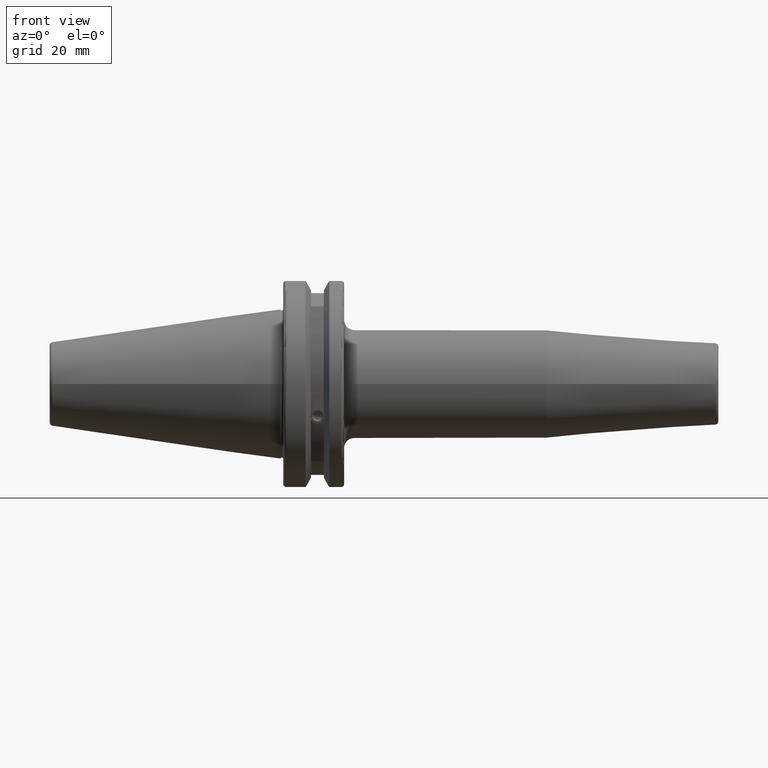
[diagram: clean part render]
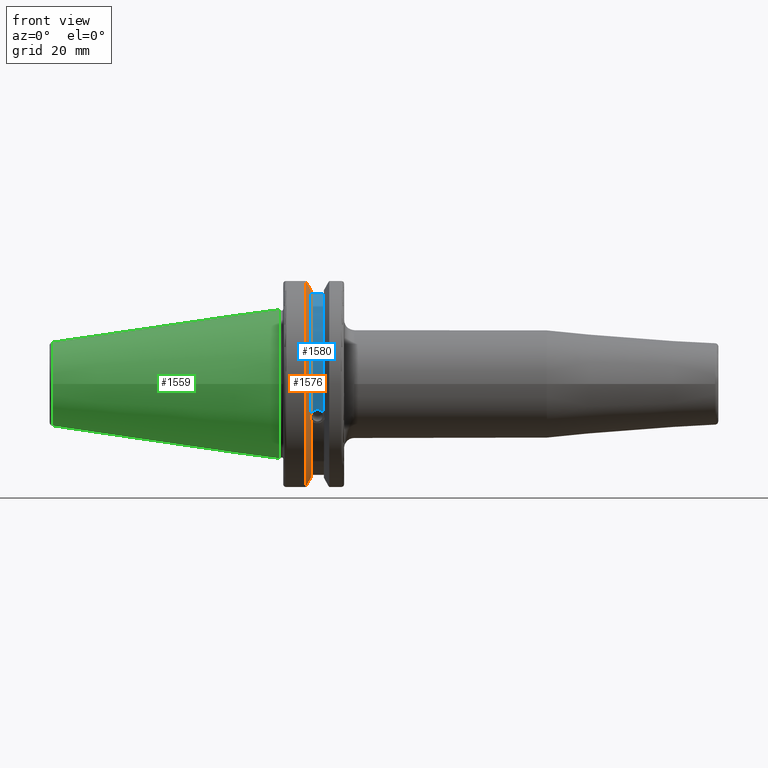
[diagram: same view with three faces highlighted in distinct colors, each labeled with its STEP entity id]
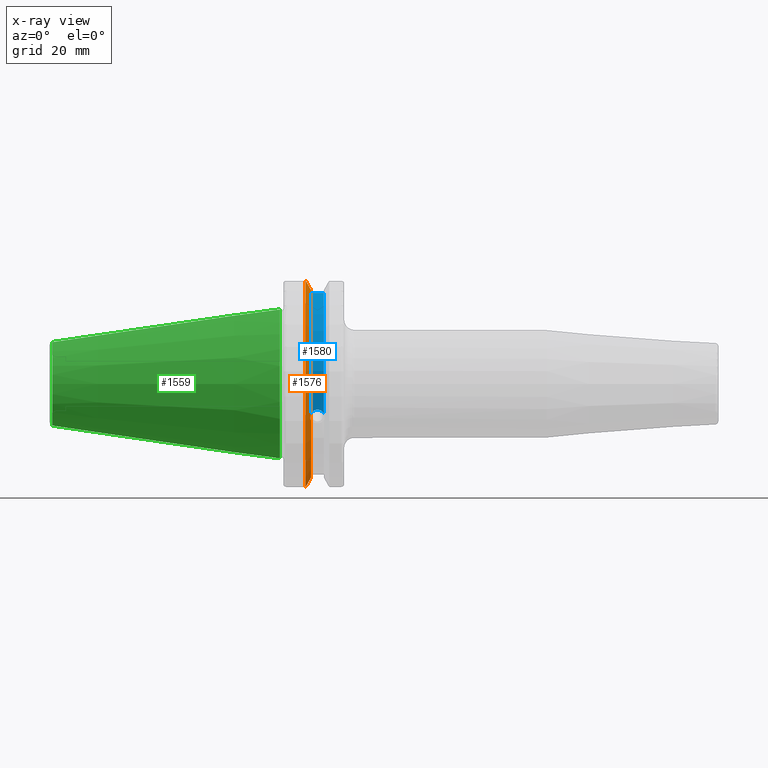
[diagram: x-ray of the same camera — body ghosted, the three highlighted faces saturated]
A machine part, front view with three faces highlighted in distinct colors.
The next image is the same camera in x-ray (body ghosted, the three faces saturated) — at least one of them is partly hidden behind the body in this view.
Their STEP definitions:

[orange] entity #1576 — the highlighted conical surface has half-angle 60 deg.
#24=(
BOUNDED_CURVE()
B_SPLINE_CURVE(2,(#2894,#2895,#2896),.UNSPECIFIED.,.F.,.F.)
B_SPLINE_CURVE_WITH_KNOTS((3,3),(0.,0.276549142797088),.UNSPECIFIED.)
CURVE()
GEOMETRIC_REPRESENTATION_ITEM()
RATIONAL_B_SPLINE_CURVE((1.,1.00095203903867,1.00031614444995))
REPRESENTATION_ITEM('')
);
#25=(
BOUNDED_CURVE()
B_SPLINE_CURVE(2,(#2906,#2907,#2908),.UNSPECIFIED.,.F.,.F.)
B_SPLINE_CURVE_WITH_KNOTS((3,3),(0.0550586467393311,0.331607789535851),
 .UNSPECIFIED.)
CURVE()
GEOMETRIC_REPRESENTATION_ITEM()
RATIONAL_B_SPLINE_CURVE((1.00031614445049,1.00095203904028,1.))
REPRESENTATION_ITEM('')
);
#26=(
BOUNDED_CURVE()
B_SPLINE_CURVE(2,(#2941,#2942,#2943),.UNSPECIFIED.,.F.,.F.)
B_SPLINE_CURVE_WITH_KNOTS((3,3),(0.,0.0639048713675838),.UNSPECIFIED.)
CURVE()
GEOMETRIC_REPRESENTATION_ITEM()
RATIONAL_B_SPLINE_CURVE((1.,1.00028444218292,1.00047644010588))
REPRESENTATION_ITEM('')
);
#27=(
BOUNDED_CURVE()
B_SPLINE_CURVE(2,(#2949,#2950,#2951),.UNSPECIFIED.,.F.,.F.)
B_SPLINE_CURVE_WITH_KNOTS((3,3),(0.329353533631213,0.393258405001024),
 .UNSPECIFIED.)
CURVE()
GEOMETRIC_REPRESENTATION_ITEM()
RATIONAL_B_SPLINE_CURVE((1.00047644010576,1.00028444218285,1.))
REPRESENTATION_ITEM('')
);
#38=B_SPLINE_CURVE_WITH_KNOTS('',3,(#2496,#2497,#2498,#2499,#2500,#2501,
#2502,#2503,#2504,#2505,#2506,#2507,#2508,#2509),.UNSPECIFIED.,.F.,.F.,
(4,2,2,2,2,2,4),(0.451995700189025,0.464547828547662,0.504528771685168,
0.544509714822673,0.584490657960178,0.624471601097683,0.637023729456319),
 .UNSPECIFIED.);
#251=FACE_OUTER_BOUND('',#355,.T.);
#355=EDGE_LOOP('',(#1435,#1436,#1437,#1438,#1439,#1440,#1441,#1442));
#588=CIRCLE('',#1685,28.9593772964944);
#609=CIRCLE('',#1739,31.75);
#621=CIRCLE('',#1774,28.9593772964944);
#679=VERTEX_POINT('',#2493);
#680=VERTEX_POINT('',#2495);
#697=VERTEX_POINT('',#2588);
#758=VERTEX_POINT('',#2891);
#759=VERTEX_POINT('',#2893);
#762=VERTEX_POINT('',#2905);
#766=VERTEX_POINT('',#2939);
#767=VERTEX_POINT('',#2945);
#851=EDGE_CURVE('',#680,#679,#38,.T.);
#875=EDGE_CURVE('',#680,#697,#588,.T.);
#958=EDGE_CURVE('',#759,#758,#24,.T.);
#964=EDGE_CURVE('',#762,#697,#25,.T.);
#972=EDGE_CURVE('',#766,#758,#26,.T.);
#974=EDGE_CURVE('',#766,#767,#609,.T.);
#975=EDGE_CURVE('',#762,#767,#27,.T.);
#1008=EDGE_CURVE('',#759,#679,#621,.T.);
#1435=ORIENTED_EDGE('',*,*,#851,.T.);
#1436=ORIENTED_EDGE('',*,*,#1008,.F.);
#1437=ORIENTED_EDGE('',*,*,#958,.T.);
#1438=ORIENTED_EDGE('',*,*,#972,.F.);
#1439=ORIENTED_EDGE('',*,*,#974,.T.);
#1440=ORIENTED_EDGE('',*,*,#975,.F.);
#1441=ORIENTED_EDGE('',*,*,#964,.T.);
#1442=ORIENTED_EDGE('',*,*,#875,.F.);
#1497=CONICAL_SURFACE('',#1773,30.3546886482472,1.0471975511966);
#1576=ADVANCED_FACE('',(#251),#1497,.T.);
#1685=AXIS2_PLACEMENT_3D('',#2589,#1975,#1976);
#1739=AXIS2_PLACEMENT_3D('',#2947,#2125,#2126);
#1773=AXIS2_PLACEMENT_3D('',#3044,#2208,#2209);
#1774=AXIS2_PLACEMENT_3D('',#3045,#2210,#2211);
#1975=DIRECTION('center_axis',(1.,0.,0.));
#1976=DIRECTION('ref_axis',(0.,0.,-1.));
#2125=DIRECTION('center_axis',(1.,0.,0.));
#2126=DIRECTION('ref_axis',(0.,0.,-1.));
#2208=DIRECTION('center_axis',(-1.,0.,0.));
#2209=DIRECTION('ref_axis',(0.,-1.,-1.22464679914735E-16));
#2210=DIRECTION('center_axis',(1.,0.,0.));
#2211=DIRECTION('ref_axis',(0.,0.,-1.));
#2493=CARTESIAN_POINT('',(9.2191,-27.4956274489925,-9.09043478536247));
#2495=CARTESIAN_POINT('',(9.21909999999999,-26.9060914640648,-10.7101715919071));
#2496=CARTESIAN_POINT('Ctrl Pts',(9.21909999999999,-26.9060914640648,-10.7101715919071));
#2497=CARTESIAN_POINT('Ctrl Pts',(9.20497959280038,-26.9406927482839,-10.6893765730703));
#2498=CARTESIAN_POINT('Ctrl Pts',(9.19150701821433,-26.9744191989197,-10.6676007180673));
#2499=CARTESIAN_POINT('Ctrl Pts',(9.13811855884095,-27.1113422433188,-10.5723885976054));
#2500=CARTESIAN_POINT('Ctrl Pts',(9.09998029158246,-27.2180531796526,-10.4801333026531));
#2501=CARTESIAN_POINT('Ctrl Pts',(9.04778935539424,-27.3968610665578,-10.2639559818059));
#2502=CARTESIAN_POINT('Ctrl Pts',(9.0341,-27.4684373304961,-10.139516340139));
#2503=CARTESIAN_POINT('Ctrl Pts',(9.0341,-27.559599249844,-9.8890510252165));
#2504=CARTESIAN_POINT('Ctrl Pts',(9.04778935539424,-27.5847569104121,-9.74771639360671));
#2505=CARTESIAN_POINT('Ctrl Pts',(9.09998029158246,-27.5867382255984,-9.46717946402648));
#2506=CARTESIAN_POINT('Ctrl Pts',(9.13811855884095,-27.5642934663232,-9.32791534028655));
#2507=CARTESIAN_POINT('Ctrl Pts',(9.19150701821433,-27.5206055003512,-9.16696618806878));
#2508=CARTESIAN_POINT('Ctrl Pts',(9.20497959280038,-27.5087667900418,-9.12860597076219));
#2509=CARTESIAN_POINT('Ctrl Pts',(9.21909999999999,-27.4956274489925,-9.09043478536247));
#2588=CARTESIAN_POINT('',(9.2191,-8.19,-27.7771386827498));
#2589=CARTESIAN_POINT('Origin',(9.2191,0.,0.));
#2891=CARTESIAN_POINT('',(7.88668530351255,-8.19,30.1755016258903));
#2893=CARTESIAN_POINT('',(9.2191,-8.19,27.7771386827498));
#2894=CARTESIAN_POINT('Ctrl Pts',(9.2191,-8.19,27.7771386827498));
#2895=CARTESIAN_POINT('Ctrl Pts',(8.58046356153227,-8.19,28.9303689539555));
#2896=CARTESIAN_POINT('Ctrl Pts',(7.88668530351255,-8.19,30.1755016258903));
#2905=CARTESIAN_POINT('',(7.88668530351256,-8.19,-30.1755016258903));
#2906=CARTESIAN_POINT('Ctrl Pts',(7.88668530351256,-8.19,-30.1755016258903));
#2907=CARTESIAN_POINT('Ctrl Pts',(8.5804635615239,-8.19,-28.9303689539705));
#2908=CARTESIAN_POINT('Ctrl Pts',(9.2191,-8.19,-27.7771386827498));
#2939=CARTESIAN_POINT('',(7.60793323092436,-8.67204822802685,30.5427254764662));
#2941=CARTESIAN_POINT('Ctrl Pts',(7.60793323092436,-8.67204822802685,30.5427254764662));
#2942=CARTESIAN_POINT('Ctrl Pts',(7.74899148121628,-8.42917748262643,30.3577067892629));
#2943=CARTESIAN_POINT('Ctrl Pts',(7.88668530351255,-8.19,30.1755016258903));
#2945=CARTESIAN_POINT('',(7.60793323092436,-8.67204822802685,-30.5427254764662));
#2947=CARTESIAN_POINT('Origin',(7.60793323092436,0.,0.));
#2949=CARTESIAN_POINT('Ctrl Pts',(7.88668530351256,-8.19,-30.1755016258903));
#2950=CARTESIAN_POINT('Ctrl Pts',(7.7489914812116,-8.42917748263465,-30.3577067892692));
#2951=CARTESIAN_POINT('Ctrl Pts',(7.60793323092436,-8.67204822802685,-30.5427254764662));
#3044=CARTESIAN_POINT('Origin',(8.41351661546217,0.,0.));
#3045=CARTESIAN_POINT('Origin',(9.2191,0.,0.));

[blue] entity #1580 — the highlighted cylindrical surface (partial cylindrical patch) has radius 28.15 mm, axis along (1, 0, 0).
#37=B_SPLINE_CURVE_WITH_KNOTS('',3,(#2479,#2480,#2481,#2482,#2483,#2484,
#2485,#2486,#2487,#2488,#2489,#2490,#2491,#2492),.UNSPECIFIED.,.F.,.F.,
(4,2,2,2,2,2,4),(0.401639126382403,0.474814416953736,0.553950208498303,
0.63308600004287,0.712221791587437,0.791357583132004,0.864532873703337),
 .UNSPECIFIED.);
#173=CYLINDRICAL_SURFACE('',#1781,28.15);
#255=FACE_OUTER_BOUND('',#359,.T.);
#359=EDGE_LOOP('',(#1455,#1456,#1457,#1458));
#436=LINE('',#2900,#529);
#529=VECTOR('',#2107,10.);
#623=CIRCLE('',#1778,28.15);
#625=CIRCLE('',#1782,28.15);
#677=VERTEX_POINT('',#2476);
#678=VERTEX_POINT('',#2478);
#760=VERTEX_POINT('',#2897);
#761=VERTEX_POINT('',#2899);
#849=EDGE_CURVE('',#678,#677,#37,.T.);
#960=EDGE_CURVE('',#761,#760,#436,.T.);
#1010=EDGE_CURVE('',#760,#678,#623,.T.);
#1012=EDGE_CURVE('',#761,#677,#625,.T.);
#1455=ORIENTED_EDGE('',*,*,#849,.T.);
#1456=ORIENTED_EDGE('',*,*,#1012,.F.);
#1457=ORIENTED_EDGE('',*,*,#960,.T.);
#1458=ORIENTED_EDGE('',*,*,#1010,.T.);
#1580=ADVANCED_FACE('',(#255),#173,.T.);
#1778=AXIS2_PLACEMENT_3D('',#3049,#2218,#2219);
#1781=AXIS2_PLACEMENT_3D('',#3052,#2224,#2225);
#1782=AXIS2_PLACEMENT_3D('',#3053,#2226,#2227);
#2107=DIRECTION('',(-1.,0.,0.));
#2218=DIRECTION('center_axis',(1.,0.,0.));
#2219=DIRECTION('ref_axis',(0.,0.,-1.));
#2224=DIRECTION('center_axis',(1.,0.,0.));
#2225=DIRECTION('ref_axis',(0.,-0.887654187951484,0.46051063246378));
#2226=DIRECTION('center_axis',(1.,0.,0.));
#2227=DIRECTION('ref_axis',(0.,0.,-1.));
#2476=CARTESIAN_POINT('',(13.0491,-26.734714844398,-8.81348524641212));
#2478=CARTESIAN_POINT('',(9.2191,-26.734714844398,-8.81348524641212));
#2479=CARTESIAN_POINT('Ctrl Pts',(9.2191,-26.734714844398,-8.81348524641212));
#2480=CARTESIAN_POINT('Ctrl Pts',(9.32533057097183,-26.8086519721597,-8.58920529678291));
#2481=CARTESIAN_POINT('Ctrl Pts',(9.4768201377051,-26.8729987454904,-8.38416529997369));
#2482=CARTESIAN_POINT('Ctrl Pts',(9.83557062657411,-26.9778908791383,-8.04056861831091));
#2483=CARTESIAN_POINT('Ctrl Pts',(10.0716450112988,-27.0233016799732,-7.88512567185902));
#2484=CARTESIAN_POINT('Ctrl Pts',(10.5890125426388,-27.0826966800569,-7.6786444840004));
#2485=CARTESIAN_POINT('Ctrl Pts',(10.8703140281848,-27.0968804077294,-7.62768458768512));
#2486=CARTESIAN_POINT('Ctrl Pts',(11.3978859718152,-27.0968804077294,-7.62768458768512));
#2487=CARTESIAN_POINT('Ctrl Pts',(11.6791874573612,-27.0826966800569,-7.6786444840004));
#2488=CARTESIAN_POINT('Ctrl Pts',(12.1965549887012,-27.0233016799732,-7.88512567185902));
#2489=CARTESIAN_POINT('Ctrl Pts',(12.4326293734259,-26.9778908791383,-8.04056861831091));
#2490=CARTESIAN_POINT('Ctrl Pts',(12.7913798622949,-26.8729987454904,-8.38416529997369));
#2491=CARTESIAN_POINT('Ctrl Pts',(12.9428694290282,-26.8086519721597,-8.58920529678291));
#2492=CARTESIAN_POINT('Ctrl Pts',(13.0491,-26.734714844398,-8.81348524641212));
#2897=CARTESIAN_POINT('',(9.2191,-8.19,26.932255754021));
#2899=CARTESIAN_POINT('',(13.0491,-8.19,26.932255754021));
#2900=CARTESIAN_POINT('',(11.1341,-8.19,26.932255754021));
#3049=CARTESIAN_POINT('Origin',(9.2191,0.,0.));
#3052=CARTESIAN_POINT('Origin',(11.1341,0.,0.));
#3053=CARTESIAN_POINT('Origin',(13.0491,0.,0.));

[green] entity #1559 — the highlighted conical surface has half-angle 8.297 deg.
#234=FACE_OUTER_BOUND('',#338,.T.);
#338=EDGE_LOOP('',(#1355,#1356,#1357,#1358,#1359));
#445=LINE('',#2999,#538);
#538=VECTOR('',#2154,17.2484375);
#611=CIRCLE('',#1745,12.3966635780937);
#612=CIRCLE('',#1746,12.3966635780937);
#616=CIRCLE('',#1752,22.225);
#772=VERTEX_POINT('',#2986);
#773=VERTEX_POINT('',#2987);
#776=VERTEX_POINT('',#2997);
#982=EDGE_CURVE('',#772,#773,#611,.T.);
#983=EDGE_CURVE('',#773,#772,#612,.T.);
#987=EDGE_CURVE('',#776,#776,#616,.T.);
#988=EDGE_CURVE('',#776,#773,#445,.T.);
#1355=ORIENTED_EDGE('',*,*,#987,.F.);
#1356=ORIENTED_EDGE('',*,*,#988,.T.);
#1357=ORIENTED_EDGE('',*,*,#982,.F.);
#1358=ORIENTED_EDGE('',*,*,#983,.F.);
#1359=ORIENTED_EDGE('',*,*,#988,.F.);
#1494=CONICAL_SURFACE('',#1751,17.2484375,0.144812498238939);
#1559=ADVANCED_FACE('',(#234),#1494,.T.);
#1745=AXIS2_PLACEMENT_3D('',#2988,#2138,#2139);
#1746=AXIS2_PLACEMENT_3D('',#2989,#2140,#2141);
#1751=AXIS2_PLACEMENT_3D('',#2996,#2150,#2151);
#1752=AXIS2_PLACEMENT_3D('',#2998,#2152,#2153);
#2138=DIRECTION('center_axis',(-1.,0.,0.));
#2139=DIRECTION('ref_axis',(0.,-1.,3.06161699786838E-17));
#2140=DIRECTION('center_axis',(-1.,0.,0.));
#2141=DIRECTION('ref_axis',(0.,-1.,3.06161699786838E-17));
#2150=DIRECTION('center_axis',(1.,0.,0.));
#2151=DIRECTION('ref_axis',(0.,1.,0.));
#2152=DIRECTION('center_axis',(1.,0.,0.));
#2153=DIRECTION('ref_axis',(0.,0.,-1.));
#2154=DIRECTION('',(-0.989532981063282,0.144306893071729,1.76724974695192E-17));
#2986=CARTESIAN_POINT('',(-67.3943068930717,-1.5181534371019E-15,12.3966635780937));
#2987=CARTESIAN_POINT('',(-67.3943068930718,-12.3966635780937,-1.5181534371019E-15));
#2988=CARTESIAN_POINT('Origin',(-67.3943068930717,0.,-1.89769179637738E-15));
#2989=CARTESIAN_POINT('Origin',(-67.3943068930717,0.,-1.89769179637738E-15));
#2996=CARTESIAN_POINT('Origin',(-34.125,0.,0.));
#2997=CARTESIAN_POINT('',(0.,-22.225,-2.72177751110499E-15));
#2998=CARTESIAN_POINT('Origin',(0.,0.,0.));
#2999=CARTESIAN_POINT('',(-34.125,-17.2484375,-2.11232437746682E-15));